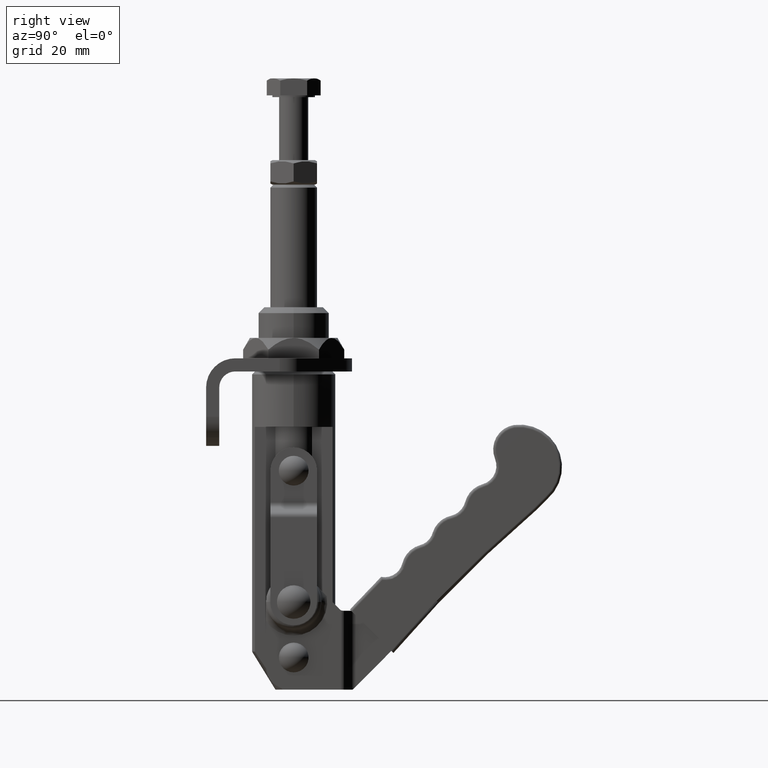
[diagram: clean part render]
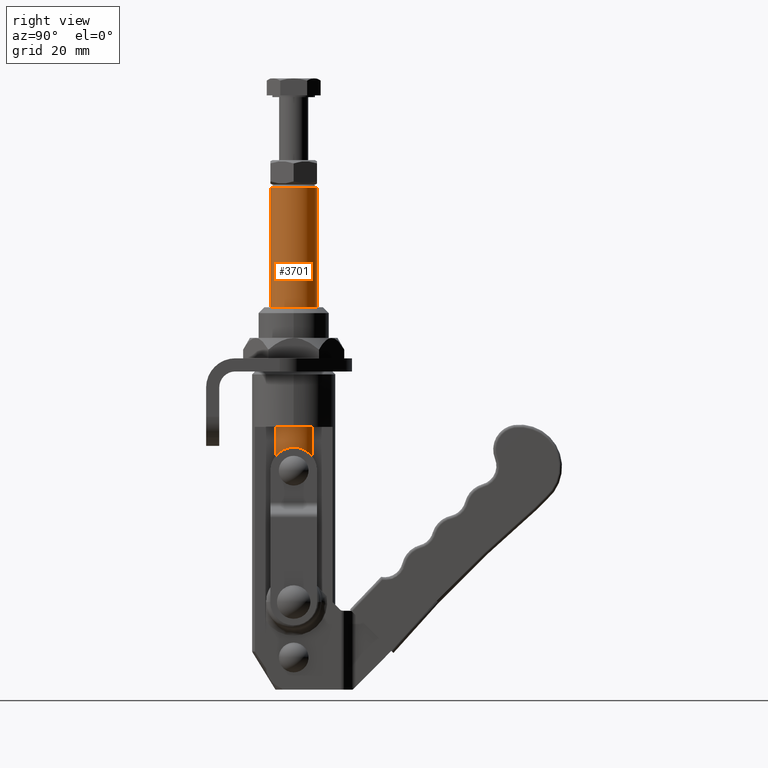
[diagram: same view with one face highlighted and labeled with its STEP entity id]
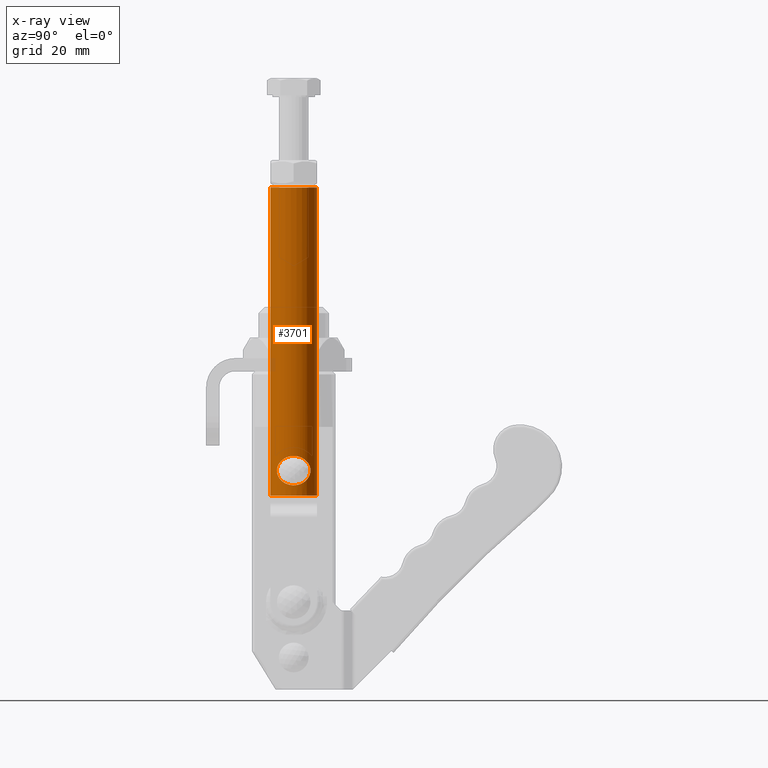
[diagram: x-ray of the same camera — body ghosted, the highlighted face saturated]
A machine part, right view. The second image highlights one B-rep face of the part: STEP entity #3701.
The next image is the same camera in x-ray: the body ghosted, the highlighted face saturated — about 1% of this face is hidden behind the body in this view.
In plain terms, the highlighted cylindrical surface (edge-blend (fillet) strip) has radius 8 mm, axis along (-0, 0, -1).
Its self-contained STEP definition (entity closure, byte-faithful):
#3459=CARTESIAN_POINT('',(-8.0,9.796851E-016,1.0));
#3460=VERTEX_POINT('',#3459);
#3469=CARTESIAN_POINT('',(8.0,-9.796851E-016,1.0));
#3470=VERTEX_POINT('',#3469);
#3503=CARTESIAN_POINT('',(-8.0,9.796851E-016,106.500000000000000));
#3504=VERTEX_POINT('',#3503);
#3520=CARTESIAN_POINT('',(8.0,9.796851E-016,106.500000000000000));
#3521=VERTEX_POINT('',#3520);
#3623=CARTESIAN_POINT('',(0.0,0.0,0.0));
#3624=DIRECTION('',(0.0,0.0,1.0));
#3625=DIRECTION('',(-1.0,0.0,0.0));
#3626=AXIS2_PLACEMENT_3D('',#3623,#3624,#3625);
#3627=CYLINDRICAL_SURFACE('',#3626,8.0);
#3628=CARTESIAN_POINT('',(-8.0,9.796851E-016,1.0));
#3629=DIRECTION('',(0.0,0.0,1.0));
#3630=VECTOR('',#3629,105.500000000000000);
#3631=LINE('',#3628,#3630);
#3632=EDGE_CURVE('',#3460,#3504,#3631,.T.);
#3633=ORIENTED_EDGE('',*,*,#3632,.F.);
#3634=CARTESIAN_POINT('',(0.0,0.0,1.0));
#3635=DIRECTION('',(0.0,0.0,-1.0));
#3636=DIRECTION('',(-1.0,0.0,0.0));
#3637=AXIS2_PLACEMENT_3D('',#3634,#3635,#3636);
#3638=CIRCLE('',#3637,8.0);
#3639=EDGE_CURVE('',#3470,#3460,#3638,.T.);
#3640=ORIENTED_EDGE('',*,*,#3639,.F.);
#3641=CARTESIAN_POINT('',(8.0,9.796851E-016,106.500000000000000));
#3642=DIRECTION('',(0.0,0.0,-1.0));
#3643=VECTOR('',#3642,105.500000000000000);
#3644=LINE('',#3641,#3643);
#3645=EDGE_CURVE('',#3521,#3470,#3644,.T.);
#3646=ORIENTED_EDGE('',*,*,#3645,.F.);
#3647=CARTESIAN_POINT('',(0.0,0.0,106.500000000000000));
#3648=DIRECTION('',(0.0,0.0,1.0));
#3649=DIRECTION('',(-1.0,0.0,0.0));
#3650=AXIS2_PLACEMENT_3D('',#3647,#3648,#3649);
#3651=CIRCLE('',#3650,8.0);
#3652=EDGE_CURVE('',#3504,#3521,#3651,.T.);
#3653=ORIENTED_EDGE('',*,*,#3652,.F.);
#3654=EDGE_LOOP('',(#3633,#3640,#3646,#3653));
#3655=FACE_OUTER_BOUND('',#3654,.T.);
#3656=CARTESIAN_POINT('',(-2.002367E-015,-8.0,92.975000000000009));
#3657=VERTEX_POINT('',#3656);
#3658=CARTESIAN_POINT('',(-2.002367E-015,-8.0,92.975000000000009));
#3659=CARTESIAN_POINT('',(0.250889606047489,-8.0,92.975000000000009));
#3660=CARTESIAN_POINT('',(0.509806317246003,-7.989633952591521,92.987571305786844));
#3661=CARTESIAN_POINT('',(1.120300801563419,-7.927110399857157,93.064160323945856));
#3662=CARTESIAN_POINT('',(1.486320501593719,-7.869917798727944,93.134165909544379));
#3663=CARTESIAN_POINT('',(2.596564272729927,-7.605055762211954,93.466011388974692));
#3664=CARTESIAN_POINT('',(3.313089708725574,-7.313539540654763,93.834562551181776));
#3665=CARTESIAN_POINT('',(4.501037752687231,-6.648531023485475,94.799774548994691));
#3666=CARTESIAN_POINT('',(4.967886175038714,-6.284063411192743,95.387385704624862));
#3667=CARTESIAN_POINT('',(5.587166133136491,-5.740531037627664,96.649674994855275));
#3668=CARTESIAN_POINT('',(5.742156287636028,-5.570246150297171,97.325833504532056));
#3669=CARTESIAN_POINT('',(5.743553213696636,-5.568805750605193,98.664993421157746));
#3670=CARTESIAN_POINT('',(5.586489194837298,-5.739837630712348,99.340638867987906));
#3671=CARTESIAN_POINT('',(4.996714364871640,-6.259987468586563,100.564394579120790));
#3672=CARTESIAN_POINT('',(4.572403388151976,-6.591028370790665,101.104894089490500));
#3673=CARTESIAN_POINT('',(3.555367829196970,-7.190819656177058,101.996148326155450));
#3674=CARTESIAN_POINT('',(2.955064780706966,-7.469404979907912,102.359135096859220));
#3675=CARTESIAN_POINT('',(1.565745933787841,-7.878633021208355,102.879634482424050));
#3676=CARTESIAN_POINT('',(0.783804753908038,-7.999479328248734,103.024365350220620));
#3677=CARTESIAN_POINT('',(-0.773139877189762,-8.000517117388515,103.025630317346840));
#3678=CARTESIAN_POINT('',(-1.555437814200359,-7.880725615922505,102.882190208244440));
#3679=CARTESIAN_POINT('',(-2.946328806832845,-7.472909044631045,102.363696349434380));
#3680=CARTESIAN_POINT('',(-3.547557646779253,-7.194726922496134,102.001452110220400));
#3681=CARTESIAN_POINT('',(-4.566268961062295,-6.595335360825233,101.111789361583670));
#3682=CARTESIAN_POINT('',(-4.991456449230752,-6.264267387205353,100.572190134728340));
#3683=CARTESIAN_POINT('',(-5.583650766342538,-5.742693401400969,99.349600475075476));
#3684=CARTESIAN_POINT('',(-5.742156288512188,-5.570246149393745,98.674165925804886));
#3685=CARTESIAN_POINT('',(-5.743553212824448,-5.568805751504524,97.335007144803512));
#3686=CARTESIAN_POINT('',(-5.590005819992100,-5.737650680001178,96.658752783214211));
#3687=CARTESIAN_POINT('',(-5.049786134346168,-6.212467690559912,95.551893939590144));
#3688=CARTESIAN_POINT('',(-4.731045445727013,-6.468491367841493,95.102521585689288));
#3689=CARTESIAN_POINT('',(-3.736033173427767,-7.109602112223946,94.101586167372929));
#3690=CARTESIAN_POINT('',(-2.963634162129885,-7.480336204079508,93.625588646258763));
#3691=CARTESIAN_POINT('',(-1.721316594681501,-7.824430233194336,93.190167466279505));
#3692=CARTESIAN_POINT('',(-1.290676565516278,-7.903422842143603,93.093269711315486));
#3693=CARTESIAN_POINT('',(-0.574652703078505,-7.987472246545507,92.990151060831408));
#3694=CARTESIAN_POINT('',(-0.282465627069755,-8.0,92.975000000000009));
#3695=CARTESIAN_POINT('',(-2.002367E-015,-8.0,92.975000000000009));
#3696=B_SPLINE_CURVE_WITH_KNOTS('',3,(#3658,#3659,#3660,#3661,#3662,#3663,#3664,#3665,#3666,#3667,#3668,#3669,#3670,#3671,#3672,#3673,#3674,#3675,#3676,#3677,#3678,#3679,#3680,#3681,#3682,#3683,#3684,#3685,#3686,#3687,#3688,#3689,#3690,#3691,#3692,#3693,#3694,#3695),.UNSPECIFIED.,.T.,.U.,(4,2,2,2,2,2,2,2,2,2,2,2,2,2,2,2,2,2,4),(0.0,0.101385842970948,0.202771685941896,0.405543371883791,0.607852071008352,0.810623756950248,1.013395442892143,1.216167128834039,1.418938814775935,1.621710500717831,1.824482186659727,2.027253872601622,2.230025558543518,2.432797244485413,2.635568930427309,2.787763441588064,3.016055208329198,3.130201091699765,3.244346975070331),.UNSPECIFIED.);
#3697=EDGE_CURVE('',#3657,#3657,#3696,.T.);
#3698=ORIENTED_EDGE('',*,*,#3697,.F.);
#3699=EDGE_LOOP('',(#3698));
#3700=FACE_BOUND('',#3699,.T.);
#3701=ADVANCED_FACE('',(#3655,#3700),#3627,.T.);